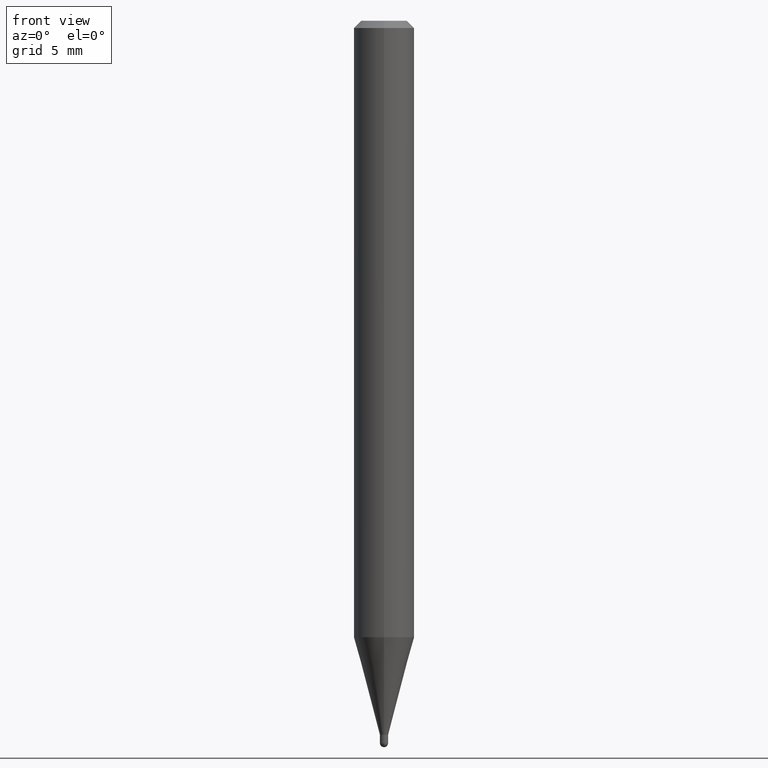
[diagram: clean part render]
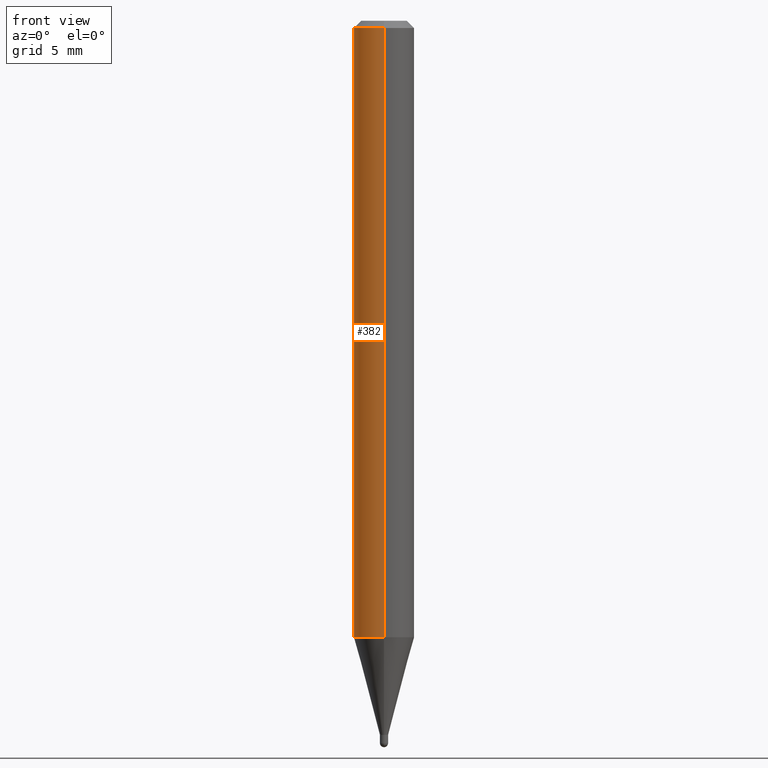
[diagram: same view with one face highlighted and labeled with its STEP entity id]
A machine part, front view. The second image highlights one B-rep face of the part: STEP entity #382.
In plain terms, the highlighted cylindrical surface (edge-blend (fillet) strip) has radius 1.5875 mm, axis along (-0, 0, 1).
Its self-contained STEP definition (entity closure, byte-faithful):
#14 = VERTEX_POINT ( 'NONE', #236 ) ;
#37 = CARTESIAN_POINT ( 'NONE',  ( 3.668198845997173123E-31, -5.237228256730788953E-17, -0.01500000000000000812 ) ) ;
#60 = ORIENTED_EDGE ( 'NONE', *, *, #309, .F. ) ;
#70 = DIRECTION ( 'NONE',  ( -6.982962677686265922E-15, -1.000000000000000000, 3.491485504487190203E-15 ) ) ;
#74 = DIRECTION ( 'NONE',  ( -2.445465897331447067E-29, 3.491485504487190992E-15, 1.000000000000000000 ) ) ;
#92 = VERTEX_POINT ( 'NONE', #190 ) ;
#96 = VERTEX_POINT ( 'NONE', #241 ) ;
#105 = DIRECTION ( 'NONE',  ( -6.982962677686265922E-15, -1.000000000000000000, 4.370956789862821150E-15 ) ) ;
#114 = AXIS2_PLACEMENT_3D ( 'NONE', #378, #187, #105 ) ;
#117 = EDGE_CURVE ( 'NONE', #14, #92, #380, .T. ) ;
#143 = EDGE_LOOP ( 'NONE', ( #266, #232, #229, #60 ) ) ;
#144 = VERTEX_POINT ( 'NONE', #223 ) ;
#168 = AXIS2_PLACEMENT_3D ( 'NONE', #379, #502, #70 ) ;
#182 = VECTOR ( 'NONE', #74, 39.37007874015748143 ) ;
#187 = DIRECTION ( 'NONE',  ( -2.445465897331447067E-29, 3.491485504487190597E-15, 1.000000000000000000 ) ) ;
#190 = CARTESIAN_POINT ( 'NONE',  ( -4.364351673553912750E-16, -0.06250000000000005551, -0.01499999999999979128 ) ) ;
#195 = FACE_OUTER_BOUND ( 'NONE', #143, .T. ) ;
#206 = EDGE_CURVE ( 'NONE', #96, #14, #343, .T. ) ;
#207 = DIRECTION ( 'NONE',  ( -6.982962677686265922E-15, -1.000000000000000000, 3.483106191921935554E-15 ) ) ;
#223 = CARTESIAN_POINT ( 'NONE',  ( 4.440892098500938748E-16, 0.06249999999999995143, -0.01500000000000022669 ) ) ;
#229 = ORIENTED_EDGE ( 'NONE', *, *, #117, .T. ) ;
#232 = ORIENTED_EDGE ( 'NONE', *, *, #206, .T. ) ;
#236 = CARTESIAN_POINT ( 'NONE',  ( -4.364351673553606080E-16, -0.06250000000000446865, -1.272969256391286663 ) ) ;
#240 = CYLINDRICAL_SURFACE ( 'NONE', #168, 0.06250000000000000000 ) ;
#241 = CARTESIAN_POINT ( 'NONE',  ( 4.440892098500935790E-16, 0.06249999999999555217, -1.272969256391287329 ) ) ;
#243 = DIRECTION ( 'NONE',  ( -2.445465897331447067E-29, 3.491485504487190597E-15, 1.000000000000000000 ) ) ;
#252 = AXIS2_PLACEMENT_3D ( 'NONE', #37, #243, #207 ) ;
#266 = ORIENTED_EDGE ( 'NONE', *, *, #295, .F. ) ;
#280 = VECTOR ( 'NONE', #292, 39.37007874015748143 ) ;
#292 = DIRECTION ( 'NONE',  ( -2.445465897331447067E-29, 3.491485504487190992E-15, 1.000000000000000000 ) ) ;
#295 = EDGE_CURVE ( 'NONE', #96, #144, #432, .T. ) ;
#309 = EDGE_CURVE ( 'NONE', #144, #92, #507, .T. ) ;
#323 = CARTESIAN_POINT ( 'NONE',  ( 4.440892098500625669E-16, 0.06250000000000000000, -2.182178440304493877E-16 ) ) ;
#343 = CIRCLE ( 'NONE', #114, 0.06250000000000000000 ) ;
#347 = CARTESIAN_POINT ( 'NONE',  ( -4.364351673553916201E-16, -0.06250000000000000000, 2.182178440304493877E-16 ) ) ;
#378 = CARTESIAN_POINT ( 'NONE',  ( 3.113002904856262917E-29, -4.444553706348016691E-15, -1.272969256391287107 ) ) ;
#379 = CARTESIAN_POINT ( 'NONE',  ( 0.000000000000000000, 0.000000000000000000, 0.000000000000000000 ) ) ;
#380 = LINE ( 'NONE', #347, #182 ) ;
#382 = ADVANCED_FACE ( 'NONE', ( #195 ), #240, .T. ) ;
#432 = LINE ( 'NONE', #323, #280 ) ;
#502 = DIRECTION ( 'NONE',  ( -2.445465897331447067E-29, 3.491485504487190597E-15, 1.000000000000000000 ) ) ;
#507 = CIRCLE ( 'NONE', #252, 0.06250000000000000000 ) ;